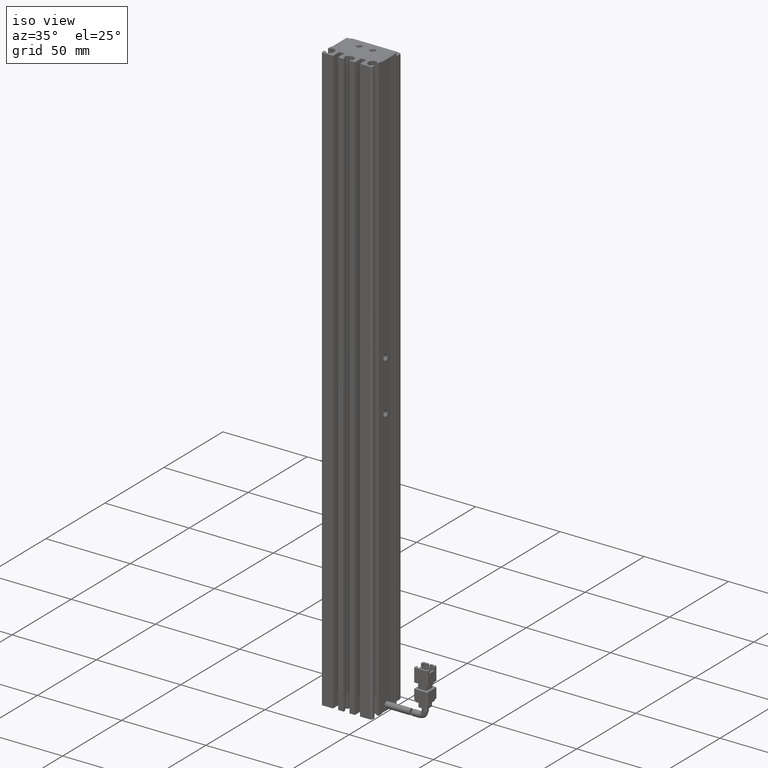
[diagram: clean part render]
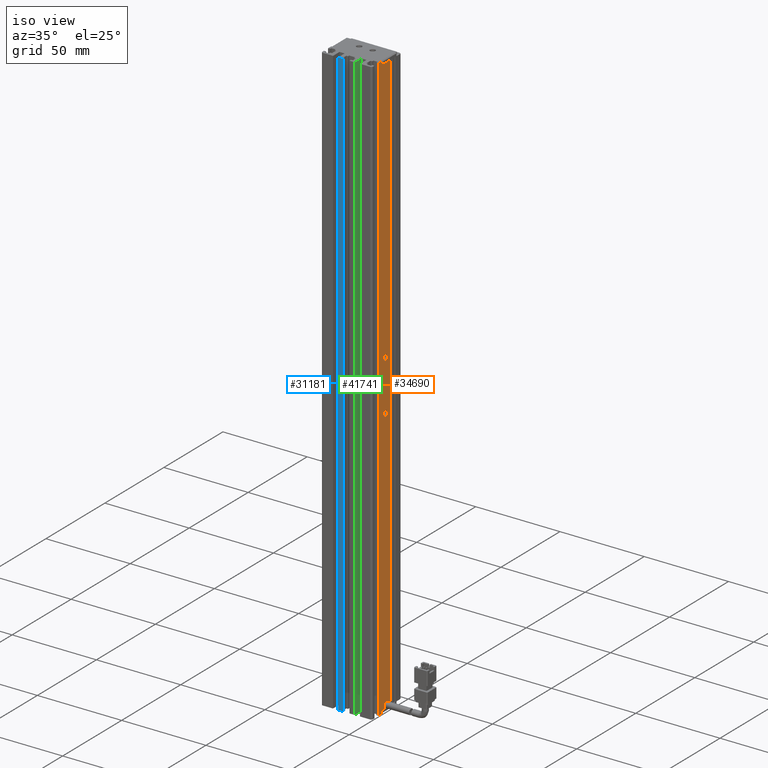
[diagram: same view with three faces highlighted in distinct colors, each labeled with its STEP entity id]
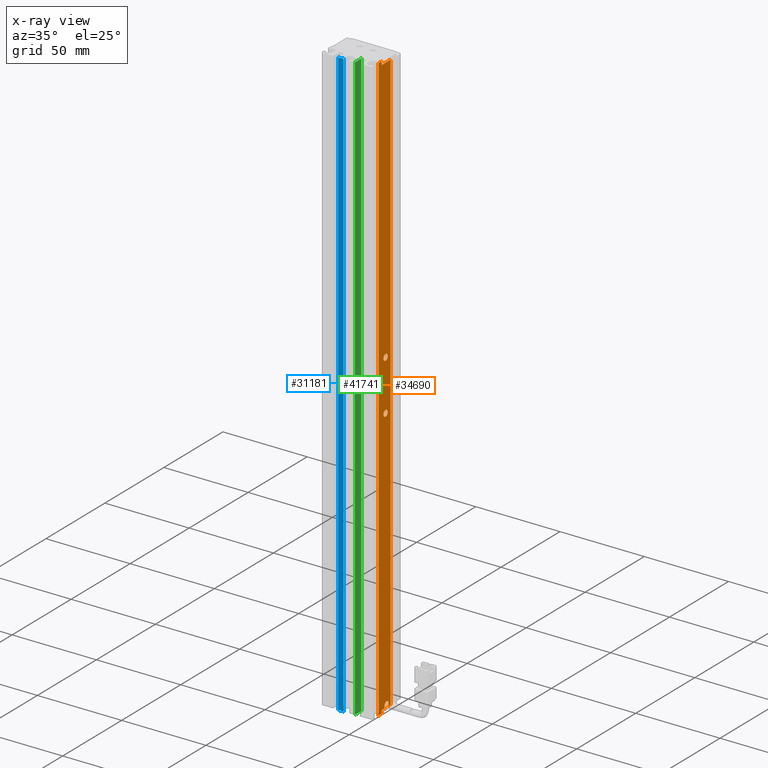
[diagram: x-ray of the same camera — body ghosted, the three highlighted faces saturated]
A machine part, iso view with three faces highlighted in distinct colors.
The next image is the same camera in x-ray (body ghosted, the three faces saturated) — at least one of them is partly hidden behind the body in this view.
Their STEP definitions:

[orange] entity #34690 — the highlighted planar face has unit normal (-1, 0, 0).
#244 = CIRCLE ( 'NONE', #11578, 1.799999999989254600 ) ;
#810 = CARTESIAN_POINT ( 'NONE',  ( 55.92537974687862600, 22.39594479660386700, -100.0000000000000000 ) ) ;
#1146 = ORIENTED_EDGE ( 'NONE', *, *, #5695, .T. ) ;
#1467 = EDGE_CURVE ( 'NONE', #65432, #11740, #16787, .T. ) ;
#2118 = CARTESIAN_POINT ( 'NONE',  ( 55.92537974683541100, 7.083797468354417100, -290.0000000000000600 ) ) ;
#2180 = EDGE_CURVE ( 'NONE', #13614, #50352, #29566, .T. ) ;
#2418 = CARTESIAN_POINT ( 'NONE',  ( 55.92537974683541100, 7.083797468354417100, -288.0000000000000600 ) ) ;
#3066 = ORIENTED_EDGE ( 'NONE', *, *, #8362, .F. ) ;
#3086 = CARTESIAN_POINT ( 'NONE',  ( 55.92537974683539700, 21.54594479660386200, -286.4499999999999900 ) ) ;
#3313 = FACE_BOUND ( 'NONE', #64590, .T. ) ;
#3573 = EDGE_CURVE ( 'NONE', #57241, #11213, #60024, .T. ) ;
#3936 = PLANE ( 'NONE',  #51195 ) ;
#4261 = DIRECTION ( 'NONE',  ( 1.394554826879015900E-015, 1.000000000000000000, -0.0000000000000000000 ) ) ;
#5661 = CARTESIAN_POINT ( 'NONE',  ( 55.92537974683543200, 26.69594479660386800, -288.0000000000000600 ) ) ;
#5695 = EDGE_CURVE ( 'NONE', #13614, #39376, #21111, .T. ) ;
#6087 = DIRECTION ( 'NONE',  ( 0.0000000000000000000, 0.0000000000000000000, -1.000000000000000000 ) ) ;
#6138 = CARTESIAN_POINT ( 'NONE',  ( 55.92537974683542500, 19.19594479660386500, 60.00000000000001400 ) ) ;
#6386 = DIRECTION ( 'NONE',  ( -0.0000000000000000000, 0.0000000000000000000, 1.000000000000000000 ) ) ;
#7697 = DIRECTION ( 'NONE',  ( -1.394554826879015900E-015, -1.000000000000000000, 0.0000000000000000000 ) ) ;
#8362 = EDGE_CURVE ( 'NONE', #40831, #11213, #65182, .T. ) ;
#8373 = VECTOR ( 'NONE', #31575, 1000.000000000000000 ) ;
#8976 = ORIENTED_EDGE ( 'NONE', *, *, #2180, .F. ) ;
#10039 = LINE ( 'NONE', #10630, #8373 ) ;
#10337 = DIRECTION ( 'NONE',  ( -1.394554826879015900E-015, -1.000000000000000000, 0.0000000000000000000 ) ) ;
#10630 = CARTESIAN_POINT ( 'NONE',  ( 55.92537974683539700, 24.84594479660386300, -288.0000000000000600 ) ) ;
#11213 = VERTEX_POINT ( 'NONE', #3086 ) ;
#11578 = AXIS2_PLACEMENT_3D ( 'NONE', #21689, #58073, #26936 ) ;
#11740 = VERTEX_POINT ( 'NONE', #54724 ) ;
#12319 = EDGE_CURVE ( 'NONE', #61202, #37856, #62819, .T. ) ;
#13614 = VERTEX_POINT ( 'NONE', #36240 ) ;
#14708 = CARTESIAN_POINT ( 'NONE',  ( 55.92537974683541100, 7.083797468354417100, 60.00000000000001400 ) ) ;
#15221 = EDGE_LOOP ( 'NONE', ( #29733, #64738 ) ) ;
#15571 = CARTESIAN_POINT ( 'NONE',  ( 55.92537974683540400, 21.54594479660386600, -288.0000000000000600 ) ) ;
#15620 = FACE_OUTER_BOUND ( 'NONE', #46721, .T. ) ;
#15653 = DIRECTION ( 'NONE',  ( 1.000000000000000000, 5.687617954022316600E-016, -0.0000000000000000000 ) ) ;
#15757 = VECTOR ( 'NONE', #10337, 1000.000000000000000 ) ;
#15951 = ORIENTED_EDGE ( 'NONE', *, *, #22177, .T. ) ;
#16534 = EDGE_CURVE ( 'NONE', #11740, #65432, #244, .T. ) ;
#16787 = CIRCLE ( 'NONE', #21896, 1.799999999989254600 ) ;
#16814 = LINE ( 'NONE', #2418, #42890 ) ;
#17317 = CARTESIAN_POINT ( 'NONE',  ( 55.92537974683542500, 21.54594479660386600, -288.0000000000000600 ) ) ;
#17384 = CARTESIAN_POINT ( 'NONE',  ( 55.92537974683541100, 24.84594479660386300, -288.0000000000000600 ) ) ;
#17443 = CARTESIAN_POINT ( 'NONE',  ( 55.92537974683542500, 16.49594479660387200, 60.00000000000001400 ) ) ;
#18740 = DIRECTION ( 'NONE',  ( 0.0000000000000000000, 1.000000000000000000, -0.0000000000000000000 ) ) ;
#19621 = CARTESIAN_POINT ( 'NONE',  ( 55.92537974687862600, 22.39594479660386700, -100.0000000000000000 ) ) ;
#19920 = DIRECTION ( 'NONE',  ( -1.394554826879015900E-015, -1.000000000000000000, 0.0000000000000000000 ) ) ;
#21111 = LINE ( 'NONE', #33038, #33319 ) ;
#21689 = CARTESIAN_POINT ( 'NONE',  ( 55.92537974682178300, 22.39594479660386700, -130.0000000000000000 ) ) ;
#21896 = AXIS2_PLACEMENT_3D ( 'NONE', #59316, #28147, #64551 ) ;
#21907 = CARTESIAN_POINT ( 'NONE',  ( 55.92537974683542500, 19.19594479660386500, 60.00000000000001400 ) ) ;
#22177 = EDGE_CURVE ( 'NONE', #40831, #66960, #10039, .T. ) ;
#24864 = DIRECTION ( 'NONE',  ( 0.0000000000000000000, 0.0000000000000000000, -1.000000000000000000 ) ) ;
#25289 = EDGE_CURVE ( 'NONE', #57241, #39376, #16814, .T. ) ;
#26936 = DIRECTION ( 'NONE',  ( 0.0000000000000000000, 0.0000000000000000000, -1.000000000000000000 ) ) ;
#27487 = CARTESIAN_POINT ( 'NONE',  ( 55.92537974683542500, 16.49594479660387200, -290.0000000000000600 ) ) ;
#28147 = DIRECTION ( 'NONE',  ( 1.000000000000000000, 0.0000000000000000000, 0.0000000000000000000 ) ) ;
#29421 = CARTESIAN_POINT ( 'NONE',  ( 55.92537974683543200, 19.19594479660386500, -288.0000000000000600 ) ) ;
#29566 = LINE ( 'NONE', #2118, #15757 ) ;
#29733 = ORIENTED_EDGE ( 'NONE', *, *, #16534, .F. ) ;
#29745 = LINE ( 'NONE', #48285, #55780 ) ;
#30003 = DIRECTION ( 'NONE',  ( -0.0000000000000000000, -0.0000000000000000000, -1.000000000000000000 ) ) ;
#30083 = VERTEX_POINT ( 'NONE', #40339 ) ;
#30114 = CIRCLE ( 'NONE', #44303, 1.800000000073395800 ) ;
#30794 = CARTESIAN_POINT ( 'NONE',  ( 55.92537974683539700, 24.84594479660386300, -286.4499999999999900 ) ) ;
#31575 = DIRECTION ( 'NONE',  ( -0.0000000000000000000, -0.0000000000000000000, -1.000000000000000000 ) ) ;
#31938 = ORIENTED_EDGE ( 'NONE', *, *, #43133, .F. ) ;
#33038 = CARTESIAN_POINT ( 'NONE',  ( 55.92537974683543200, 19.19594479660386500, 60.00000000000001400 ) ) ;
#33319 = VECTOR ( 'NONE', #58972, 1000.000000000000000 ) ;
#33479 = LINE ( 'NONE', #66700, #59563 ) ;
#33488 = AXIS2_PLACEMENT_3D ( 'NONE', #46813, #15653, #52041 ) ;
#33973 = CARTESIAN_POINT ( 'NONE',  ( 55.92537974683542500, 7.083797468354437600, 60.00000000000001400 ) ) ;
#34071 = LINE ( 'NONE', #46742, #60135 ) ;
#34551 = VERTEX_POINT ( 'NONE', #17443 ) ;
#34690 = ADVANCED_FACE ( 'NONE', ( #3313, #15620, #55486 ), #3936, .F. ) ;
#34980 = CARTESIAN_POINT ( 'NONE',  ( 55.92537974683543900, 26.69594479660386800, 60.00000000000001400 ) ) ;
#35476 = ORIENTED_EDGE ( 'NONE', *, *, #44523, .F. ) ;
#36240 = CARTESIAN_POINT ( 'NONE',  ( 55.92537974683543200, 19.19594479660386500, -290.0000000000000600 ) ) ;
#37274 = EDGE_CURVE ( 'NONE', #50352, #34551, #29745, .T. ) ;
#37381 = DIRECTION ( 'NONE',  ( 1.000000000000000000, 0.0000000000000000000, 0.0000000000000000000 ) ) ;
#37856 = VERTEX_POINT ( 'NONE', #5661 ) ;
#38530 = ORIENTED_EDGE ( 'NONE', *, *, #37274, .F. ) ;
#38690 = VECTOR ( 'NONE', #18740, 1000.000000000000000 ) ;
#38849 = ORIENTED_EDGE ( 'NONE', *, *, #64341, .F. ) ;
#39376 = VERTEX_POINT ( 'NONE', #29421 ) ;
#40339 = CARTESIAN_POINT ( 'NONE',  ( 55.92537974687862600, 22.39594479660386700, -101.8000000000734000 ) ) ;
#40831 = VERTEX_POINT ( 'NONE', #30794 ) ;
#40976 = ORIENTED_EDGE ( 'NONE', *, *, #56550, .F. ) ;
#41731 = ORIENTED_EDGE ( 'NONE', *, *, #25289, .F. ) ;
#42746 = VERTEX_POINT ( 'NONE', #6138 ) ;
#42890 = VECTOR ( 'NONE', #7697, 1000.000000000000000 ) ;
#43133 = EDGE_CURVE ( 'NONE', #58839, #61202, #33479, .T. ) ;
#44303 = AXIS2_PLACEMENT_3D ( 'NONE', #810, #37381, #6087 ) ;
#44523 = EDGE_CURVE ( 'NONE', #52742, #30083, #66246, .T. ) ;
#46721 = EDGE_LOOP ( 'NONE', ( #58249, #3066, #15951, #40976, #55596, #31938, #53061, #55807, #38530, #8976, #1146, #41731 ) ) ;
#46731 = DIRECTION ( 'NONE',  ( -0.0000000000000000000, -1.119176436114072200E-015, 1.000000000000000000 ) ) ;
#46742 = CARTESIAN_POINT ( 'NONE',  ( 55.92537974683541100, 7.083797468354417100, -288.0000000000000600 ) ) ;
#46813 = CARTESIAN_POINT ( 'NONE',  ( 55.92537974683539700, 23.19594479660386500, -286.4499999999999900 ) ) ;
#48285 = CARTESIAN_POINT ( 'NONE',  ( 55.92537974683542500, 16.49594479660387200, 60.00000000000001400 ) ) ;
#48971 = VECTOR ( 'NONE', #30003, 1000.000000000000000 ) ;
#50352 = VERTEX_POINT ( 'NONE', #27487 ) ;
#51056 = VECTOR ( 'NONE', #6386, 1000.000000000000000 ) ;
#51118 = DIRECTION ( 'NONE',  ( -1.000000000000000000, 1.394554826879015900E-015, 0.0000000000000000000 ) ) ;
#51195 = AXIS2_PLACEMENT_3D ( 'NONE', #14708, #51118, #19920 ) ;
#51982 = DIRECTION ( 'NONE',  ( -1.394554826879015900E-015, -1.000000000000000000, 0.0000000000000000000 ) ) ;
#52041 = DIRECTION ( 'NONE',  ( 0.0000000000000000000, 1.000000000000000000, 0.0000000000000000000 ) ) ;
#52742 = VERTEX_POINT ( 'NONE', #66793 ) ;
#53002 = EDGE_CURVE ( 'NONE', #58839, #42746, #64886, .T. ) ;
#53061 = ORIENTED_EDGE ( 'NONE', *, *, #53002, .T. ) ;
#53520 = DIRECTION ( 'NONE',  ( 0.0000000000000000000, 0.0000000000000000000, 1.000000000000000000 ) ) ;
#54724 = CARTESIAN_POINT ( 'NONE',  ( 55.92537974682178300, 22.39594479660386700, -131.7999999999892700 ) ) ;
#55486 = FACE_BOUND ( 'NONE', #15221, .T. ) ;
#55596 = ORIENTED_EDGE ( 'NONE', *, *, #12319, .F. ) ;
#55780 = VECTOR ( 'NONE', #53520, 1000.000000000000000 ) ;
#55807 = ORIENTED_EDGE ( 'NONE', *, *, #65376, .F. ) ;
#55877 = CARTESIAN_POINT ( 'NONE',  ( 55.92537974683543900, 26.69594479660386800, 58.00000000000000700 ) ) ;
#56023 = DIRECTION ( 'NONE',  ( 1.000000000000000000, 0.0000000000000000000, 0.0000000000000000000 ) ) ;
#56453 = CARTESIAN_POINT ( 'NONE',  ( 55.92537974683543200, 19.19594479660386500, 58.00000000000000700 ) ) ;
#56550 = EDGE_CURVE ( 'NONE', #37856, #66960, #34071, .T. ) ;
#57241 = VERTEX_POINT ( 'NONE', #17317 ) ;
#57317 = AXIS2_PLACEMENT_3D ( 'NONE', #19621, #56023, #24864 ) ;
#58073 = DIRECTION ( 'NONE',  ( 1.000000000000000000, 0.0000000000000000000, 0.0000000000000000000 ) ) ;
#58249 = ORIENTED_EDGE ( 'NONE', *, *, #3573, .T. ) ;
#58367 = VECTOR ( 'NONE', #46731, 1000.000000000000000 ) ;
#58839 = VERTEX_POINT ( 'NONE', #56453 ) ;
#58972 = DIRECTION ( 'NONE',  ( -0.0000000000000000000, 0.0000000000000000000, 1.000000000000000000 ) ) ;
#59316 = CARTESIAN_POINT ( 'NONE',  ( 55.92537974682178300, 22.39594479660386700, -130.0000000000000000 ) ) ;
#59563 = VECTOR ( 'NONE', #4261, 1000.000000000000000 ) ;
#60024 = LINE ( 'NONE', #15571, #58367 ) ;
#60135 = VECTOR ( 'NONE', #51982, 1000.000000000000000 ) ;
#61202 = VERTEX_POINT ( 'NONE', #55877 ) ;
#62819 = LINE ( 'NONE', #34980, #48971 ) ;
#64341 = EDGE_CURVE ( 'NONE', #30083, #52742, #30114, .T. ) ;
#64551 = DIRECTION ( 'NONE',  ( 0.0000000000000000000, 0.0000000000000000000, -1.000000000000000000 ) ) ;
#64590 = EDGE_LOOP ( 'NONE', ( #38849, #35476 ) ) ;
#64738 = ORIENTED_EDGE ( 'NONE', *, *, #1467, .F. ) ;
#64886 = LINE ( 'NONE', #21907, #51056 ) ;
#65182 = CIRCLE ( 'NONE', #33488, 1.649999999999998600 ) ;
#65376 = EDGE_CURVE ( 'NONE', #34551, #42746, #66318, .T. ) ;
#65432 = VERTEX_POINT ( 'NONE', #65847 ) ;
#65847 = CARTESIAN_POINT ( 'NONE',  ( 55.92537974682178300, 22.39594479660386700, -128.2000000000107600 ) ) ;
#66246 = CIRCLE ( 'NONE', #57317, 1.800000000073395800 ) ;
#66318 = LINE ( 'NONE', #33973, #38690 ) ;
#66700 = CARTESIAN_POINT ( 'NONE',  ( 55.92537974683541100, 7.083797468354417100, 58.00000000000000700 ) ) ;
#66793 = CARTESIAN_POINT ( 'NONE',  ( 55.92537974687862600, 22.39594479660386700, -98.19999999992660400 ) ) ;
#66960 = VERTEX_POINT ( 'NONE', #17384 ) ;

[blue] entity #31181 — the highlighted planar face has unit normal (0, -1, 0).
#1658 = ORIENTED_EDGE ( 'NONE', *, *, #27563, .T. ) ;
#2172 = FACE_OUTER_BOUND ( 'NONE', #64487, .T. ) ;
#3695 = CARTESIAN_POINT ( 'NONE',  ( 39.17537974683542500, 10.69594479660386800, 60.00000000000001400 ) ) ;
#6381 = AXIS2_PLACEMENT_3D ( 'NONE', #29876, #66261, #35081 ) ;
#8415 = VECTOR ( 'NONE', #15987, 1000.000000000000000 ) ;
#8959 = DIRECTION ( 'NONE',  ( -0.0000000000000000000, 0.0000000000000000000, 1.000000000000000000 ) ) ;
#12414 = EDGE_CURVE ( 'NONE', #20228, #40414, #30226, .T. ) ;
#13152 = VERTEX_POINT ( 'NONE', #53113 ) ;
#13369 = VECTOR ( 'NONE', #8959, 1000.000000000000000 ) ;
#15987 = DIRECTION ( 'NONE',  ( 0.0000000000000000000, -0.0000000000000000000, -1.000000000000000000 ) ) ;
#17182 = VECTOR ( 'NONE', #36118, 1000.000000000000000 ) ;
#20228 = VERTEX_POINT ( 'NONE', #32053 ) ;
#21670 = ORIENTED_EDGE ( 'NONE', *, *, #23873, .T. ) ;
#22669 = LINE ( 'NONE', #24996, #48724 ) ;
#23873 = EDGE_CURVE ( 'NONE', #13152, #53097, #22669, .T. ) ;
#24996 = CARTESIAN_POINT ( 'NONE',  ( 40.92537974683542500, 10.69594479660386800, -290.0000000000000600 ) ) ;
#27193 = LINE ( 'NONE', #3695, #13369 ) ;
#27563 = EDGE_CURVE ( 'NONE', #20228, #13152, #48349, .T. ) ;
#28281 = CARTESIAN_POINT ( 'NONE',  ( 39.17537974683542500, 10.69594479660386800, -290.0000000000000600 ) ) ;
#29876 = CARTESIAN_POINT ( 'NONE',  ( 40.92537974683542500, 10.69594479660386800, 60.00000000000001400 ) ) ;
#30218 = DIRECTION ( 'NONE',  ( 1.000000000000000000, 0.0000000000000000000, 0.0000000000000000000 ) ) ;
#30226 = LINE ( 'NONE', #62074, #17182 ) ;
#31181 = ADVANCED_FACE ( 'NONE', ( #2172 ), #39959, .T. ) ;
#32053 = CARTESIAN_POINT ( 'NONE',  ( 35.92537974683543200, 10.69594479660386800, 60.00000000000001400 ) ) ;
#35081 = DIRECTION ( 'NONE',  ( 0.0000000000000000000, -0.0000000000000000000, -1.000000000000000000 ) ) ;
#36118 = DIRECTION ( 'NONE',  ( 1.000000000000000000, 0.0000000000000000000, 0.0000000000000000000 ) ) ;
#39959 = PLANE ( 'NONE',  #6381 ) ;
#40414 = VERTEX_POINT ( 'NONE', #65460 ) ;
#43790 = ORIENTED_EDGE ( 'NONE', *, *, #54757, .T. ) ;
#45718 = ORIENTED_EDGE ( 'NONE', *, *, #12414, .F. ) ;
#47137 = CARTESIAN_POINT ( 'NONE',  ( 35.92537974683543200, 10.69594479660386800, 60.00000000000001400 ) ) ;
#48349 = LINE ( 'NONE', #47137, #8415 ) ;
#48724 = VECTOR ( 'NONE', #30218, 1000.000000000000000 ) ;
#53097 = VERTEX_POINT ( 'NONE', #28281 ) ;
#53113 = CARTESIAN_POINT ( 'NONE',  ( 35.92537974683543200, 10.69594479660386800, -290.0000000000000600 ) ) ;
#54757 = EDGE_CURVE ( 'NONE', #53097, #40414, #27193, .T. ) ;
#62074 = CARTESIAN_POINT ( 'NONE',  ( 40.92537974683542500, 10.69594479660386800, 60.00000000000001400 ) ) ;
#64487 = EDGE_LOOP ( 'NONE', ( #45718, #1658, #21670, #43790 ) ) ;
#65460 = CARTESIAN_POINT ( 'NONE',  ( 39.17537974683542500, 10.69594479660386800, 60.00000000000001400 ) ) ;
#66261 = DIRECTION ( 'NONE',  ( 0.0000000000000000000, -1.000000000000000000, 0.0000000000000000000 ) ) ;

[green] entity #41741 — the highlighted planar face has unit normal (-1, -0, 0).
#235 = VERTEX_POINT ( 'NONE', #58974 ) ;
#3586 = CARTESIAN_POINT ( 'NONE',  ( 45.92537974683541800, 10.69594479660386800, -290.0000000000000600 ) ) ;
#6110 = VECTOR ( 'NONE', #48214, 1000.000000000000000 ) ;
#8127 = LINE ( 'NONE', #62467, #48078 ) ;
#8900 = EDGE_CURVE ( 'NONE', #46120, #235, #8127, .T. ) ;
#8979 = DIRECTION ( 'NONE',  ( 0.0000000000000000000, 0.0000000000000000000, 1.000000000000000000 ) ) ;
#9146 = ORIENTED_EDGE ( 'NONE', *, *, #58146, .F. ) ;
#10134 = EDGE_CURVE ( 'NONE', #42391, #235, #20023, .T. ) ;
#11562 = LINE ( 'NONE', #33078, #62056 ) ;
#13175 = PLANE ( 'NONE',  #30712 ) ;
#13411 = DIRECTION ( 'NONE',  ( -1.000000000000000000, -3.154042683594196600E-016, 0.0000000000000000000 ) ) ;
#13565 = CARTESIAN_POINT ( 'NONE',  ( 45.92537974683541800, 16.19594479660386800, 60.00000000000001400 ) ) ;
#14933 = EDGE_LOOP ( 'NONE', ( #23235, #60445, #9146, #37621 ) ) ;
#15827 = DIRECTION ( 'NONE',  ( 0.0000000000000000000, 1.000000000000000000, -0.0000000000000000000 ) ) ;
#19259 = CARTESIAN_POINT ( 'NONE',  ( 45.92537974683541800, 10.69594479660386800, 60.00000000000001400 ) ) ;
#20023 = LINE ( 'NONE', #43020, #6110 ) ;
#23235 = ORIENTED_EDGE ( 'NONE', *, *, #10134, .F. ) ;
#26247 = LINE ( 'NONE', #19259, #64514 ) ;
#27546 = CARTESIAN_POINT ( 'NONE',  ( 45.92537974683541800, 10.69594479660386800, 60.00000000000001400 ) ) ;
#30712 = AXIS2_PLACEMENT_3D ( 'NONE', #44583, #13411, #49794 ) ;
#33078 = CARTESIAN_POINT ( 'NONE',  ( 45.92537974683541800, 7.083797468354437600, 60.00000000000001400 ) ) ;
#33884 = VERTEX_POINT ( 'NONE', #27546 ) ;
#37621 = ORIENTED_EDGE ( 'NONE', *, *, #8900, .T. ) ;
#38366 = DIRECTION ( 'NONE',  ( 0.0000000000000000000, 1.000000000000000000, -0.0000000000000000000 ) ) ;
#41741 = ADVANCED_FACE ( 'NONE', ( #55804 ), #13175, .F. ) ;
#42391 = VERTEX_POINT ( 'NONE', #13565 ) ;
#43020 = CARTESIAN_POINT ( 'NONE',  ( 45.92537974683541800, 16.19594479660386800, 60.00000000000001400 ) ) ;
#44583 = CARTESIAN_POINT ( 'NONE',  ( 45.92537974683541800, 7.083797468354439400, 60.00000000000001400 ) ) ;
#46120 = VERTEX_POINT ( 'NONE', #3586 ) ;
#48078 = VECTOR ( 'NONE', #15827, 1000.000000000000000 ) ;
#48214 = DIRECTION ( 'NONE',  ( 0.0000000000000000000, -0.0000000000000000000, -1.000000000000000000 ) ) ;
#49794 = DIRECTION ( 'NONE',  ( 3.154042683594196600E-016, -1.000000000000000000, 0.0000000000000000000 ) ) ;
#55804 = FACE_OUTER_BOUND ( 'NONE', #14933, .T. ) ;
#58146 = EDGE_CURVE ( 'NONE', #46120, #33884, #26247, .T. ) ;
#58974 = CARTESIAN_POINT ( 'NONE',  ( 45.92537974683541800, 16.19594479660386800, -290.0000000000000600 ) ) ;
#60445 = ORIENTED_EDGE ( 'NONE', *, *, #61565, .F. ) ;
#61565 = EDGE_CURVE ( 'NONE', #33884, #42391, #11562, .T. ) ;
#62056 = VECTOR ( 'NONE', #38366, 1000.000000000000000 ) ;
#62467 = CARTESIAN_POINT ( 'NONE',  ( 45.92537974683541800, 7.083797468354437600, -290.0000000000000600 ) ) ;
#64514 = VECTOR ( 'NONE', #8979, 1000.000000000000000 ) ;